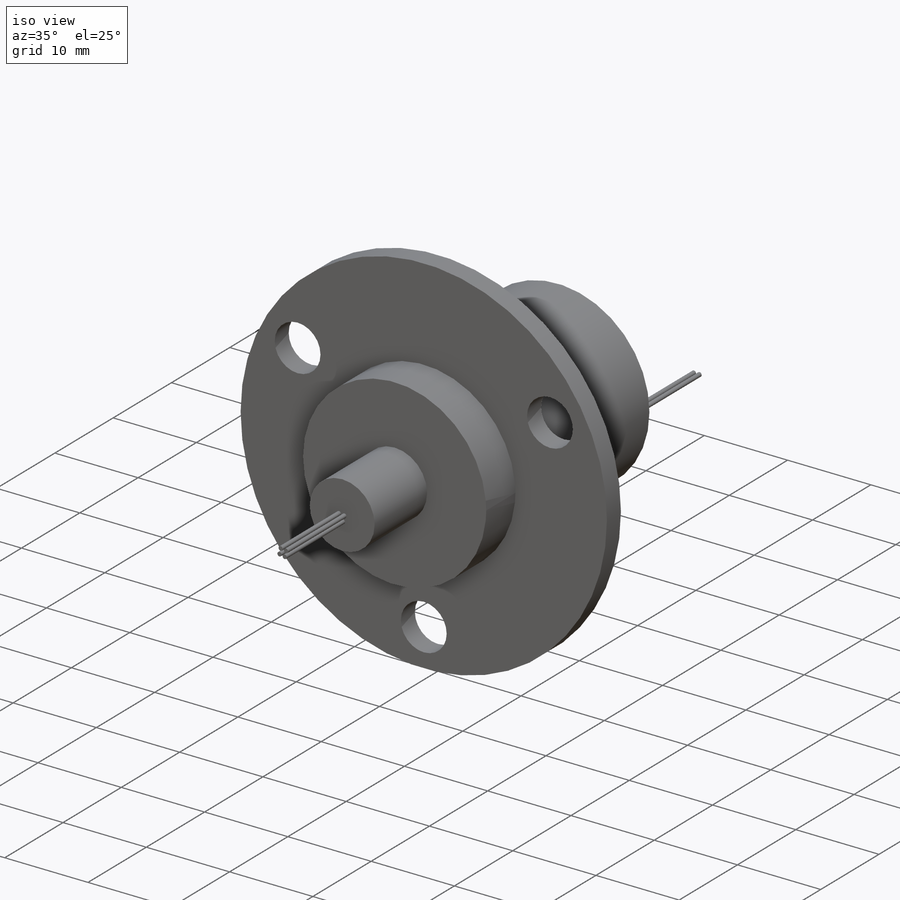
[diagram: iso view]
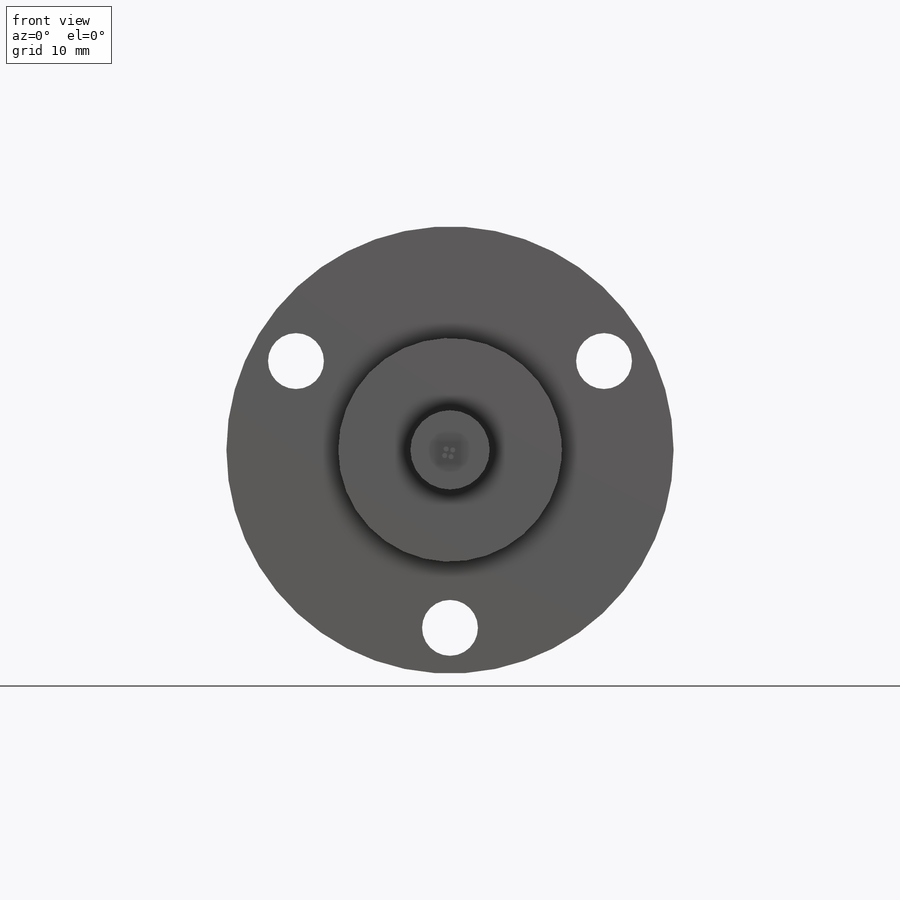
[diagram: front view]
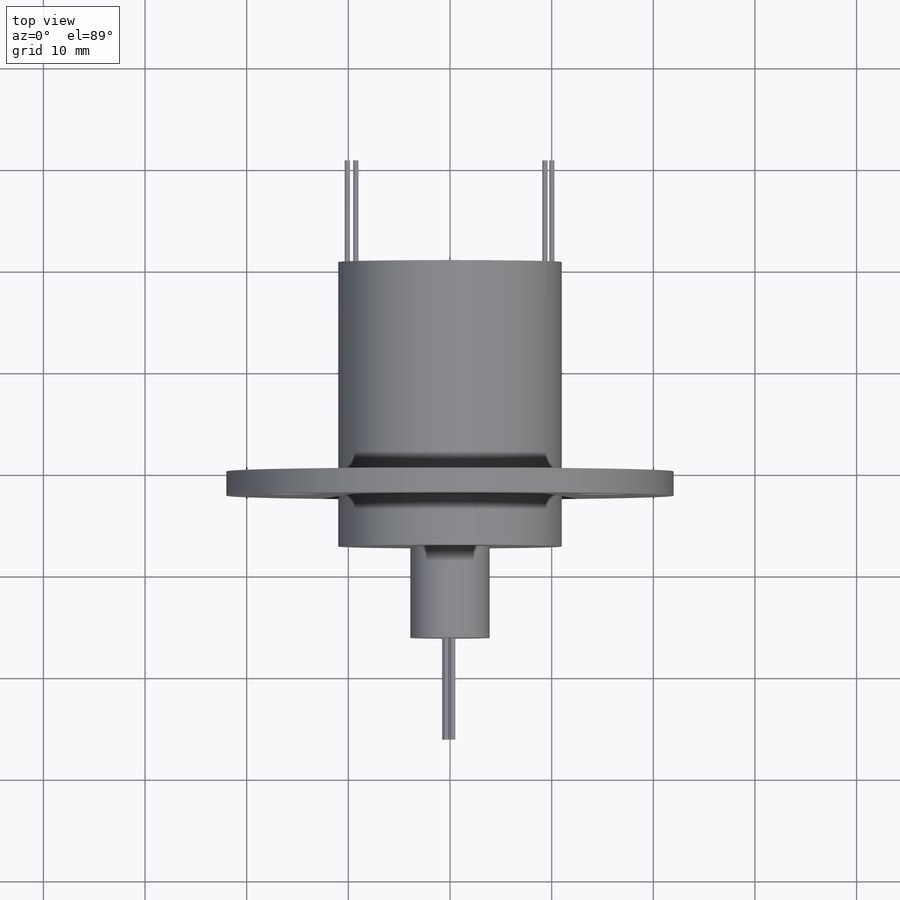
[diagram: top view]
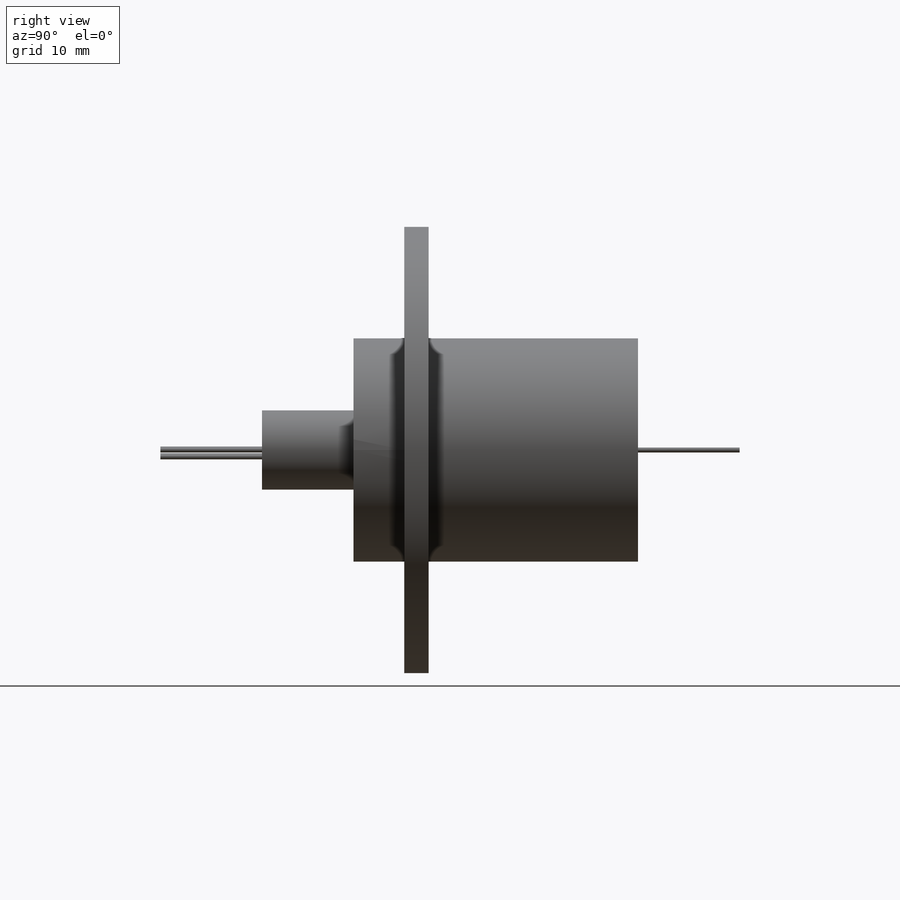
[diagram: right view]
SOLIDWORKS PART (.sldprt)
format: sldprt  version: not decoded by parser v0  size: 250,368 bytes
history: native  units: mm
features: sketch x14, revolve x9, plane x4, extrude x3, material x1, hole x1 (+12 scaffold rows collapsed)
feature tree (44):
  scaffold x12  (default folders/planes/origin — collapsed)
  material  "Material <not specified>"
  plane  "Plane1"
  sketch  "Sketch1"
  revolve  "Revolve1"  Angle=360deg
  sketch  "Sketch2"
  extrude  "Boss-Extrude1"  Depth=5mm
  sketch  "Sketch3"
  extrude  "Boss-Extrude2"  Depth=9mm
  sketch  "Sketch4"
  extrude  "Boss-Extrude3"  Depth=20.6mm
  plane  "Plane2"  Offset=0.675789mm
  sketch  "Sketch5"
  revolve  "Revolve2"  Angle=360deg
  plane  "Plane3"  Offset=0.091161mm
  sketch  "Sketch6"
  revolve  "Revolve3"  Angle=360deg
  plane  "Plane4"  Offset=0.562471mm
  sketch  "Sketch7"
  revolve  "Revolve4"  Angle=360deg
  sketch  "Sketch8"
  revolve  "Revolve5"  Angle=360deg
  sketch  "Sketch9"
  revolve  "Revolve6"  Angle=360deg
  sketch  "Sketch10"
  revolve  "Revolve7"  Angle=360deg
  sketch  "Sketch11"
  revolve  "Revolve8"  Angle=360deg
  sketch  "Sketch12"
  revolve  "Revolve9"  Angle=360deg
  hole  "Ø5.5 (5.5) Diameter Hole1"  Diameter=5.5mm Depth=26.4mm
  sketch  "Sketch14"
  sketch  "Sketch13"  dims[hole-wizard template sketch: 60 standard entries collapsed; hole parameters kept: c18.Thru Hole Depth=26.4mm]
decode coverage: 14 of 27 modeling features carry decoded parameters
note: ~ marks probable driven/reference dimensions
note: suppression state not decoded; provenance and decode notes live in map.json
